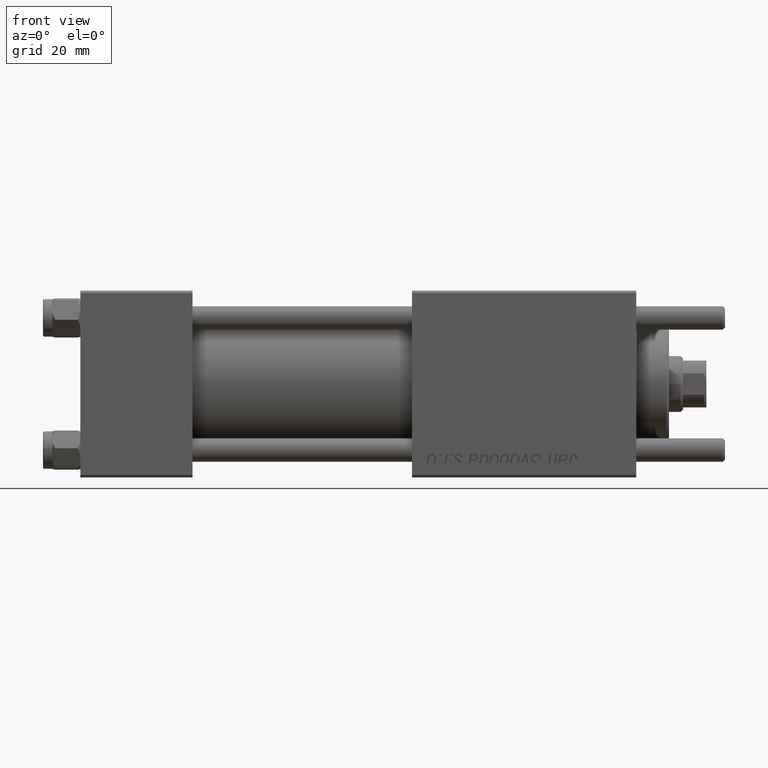
[diagram: clean part render]
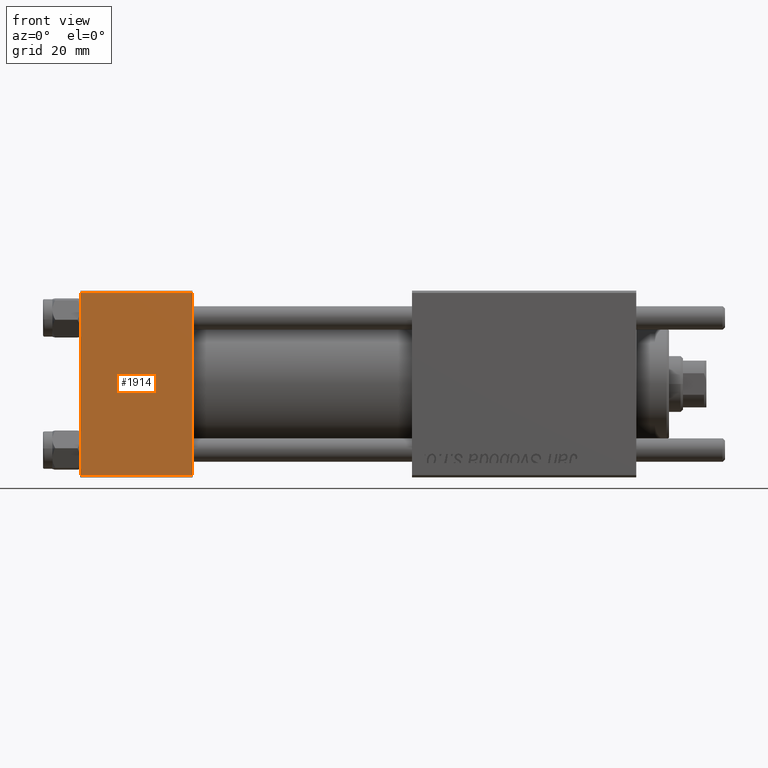
[diagram: same view with one face highlighted and labeled with its STEP entity id]
A machine part, front view. The second image highlights one B-rep face of the part: STEP entity #1914.
In plain terms, the highlighted planar face has unit normal (0, 1, 0).
Its self-contained STEP definition (entity closure, byte-faithful):
#886 = DIRECTION ( 'NONE',  ( -1.000000000000000000, 0.000000000000000000, 0.000000000000000000 ) ) ;
#1542 = DIRECTION ( 'NONE',  ( 0.000000000000000000, -8.673617379884036705E-17, 1.000000000000000000 ) ) ;
#1914 = ADVANCED_FACE ( 'NONE', ( #37371 ), #6707, .F. ) ;
#2937 = VECTOR ( 'NONE', #42193, 1000.000000000000000 ) ;
#4826 = VECTOR ( 'NONE', #52438, 1000.000000000000000 ) ;
#5086 = CARTESIAN_POINT ( 'NONE',  ( 0.000000000000000000, -20.00000000000000355, 19.99999999999998934 ) ) ;
#6707 = PLANE ( 'NONE',  #45117 ) ;
#7451 = VERTEX_POINT ( 'NONE', #37975 ) ;
#11924 = CARTESIAN_POINT ( 'NONE',  ( 24.00000000000000000, -20.00000000000000000, -19.49999999999999645 ) ) ;
#12230 = CARTESIAN_POINT ( 'NONE',  ( 0.000000000000000000, -20.00000000000000000, -19.49999999999999645 ) ) ;
#14319 = ORIENTED_EDGE ( 'NONE', *, *, #52368, .F. ) ;
#21234 = LINE ( 'NONE', #25534, #2937 ) ;
#21290 = CARTESIAN_POINT ( 'NONE',  ( 24.00000000000000000, -20.00000000000000355, 19.49999999999998224 ) ) ;
#25534 = CARTESIAN_POINT ( 'NONE',  ( 24.00000000000000000, -20.00000000000000355, 19.99999999999998934 ) ) ;
#26290 = ORIENTED_EDGE ( 'NONE', *, *, #38585, .T. ) ;
#27536 = EDGE_LOOP ( 'NONE', ( #30817, #55981, #14319, #26290 ) ) ;
#28119 = LINE ( 'NONE', #36442, #39916 ) ;
#29413 = DIRECTION ( 'NONE',  ( 1.000000000000000000, 0.000000000000000000, 0.000000000000000000 ) ) ;
#30817 = ORIENTED_EDGE ( 'NONE', *, *, #53619, .T. ) ;
#31499 = VERTEX_POINT ( 'NONE', #34439 ) ;
#34104 = VERTEX_POINT ( 'NONE', #21290 ) ;
#34439 = CARTESIAN_POINT ( 'NONE',  ( 24.00000000000000000, -20.00000000000000000, -19.49999999999999645 ) ) ;
#36442 = CARTESIAN_POINT ( 'NONE',  ( 24.00000000000000000, -20.00000000000000355, 19.49999999999998224 ) ) ;
#37371 = FACE_OUTER_BOUND ( 'NONE', #27536, .T. ) ;
#37975 = CARTESIAN_POINT ( 'NONE',  ( 0.000000000000000000, -20.00000000000000355, 19.49999999999998224 ) ) ;
#38585 = EDGE_CURVE ( 'NONE', #34104, #7451, #28119, .T. ) ;
#39916 = VECTOR ( 'NONE', #886, 1000.000000000000000 ) ;
#41387 = VECTOR ( 'NONE', #29413, 1000.000000000000000 ) ;
#42193 = DIRECTION ( 'NONE',  ( 0.000000000000000000, 8.673617379884036705E-17, -1.000000000000000000 ) ) ;
#44381 = LINE ( 'NONE', #5086, #4826 ) ;
#45117 = AXIS2_PLACEMENT_3D ( 'NONE', #54600, #54323, #1542 ) ;
#51189 = EDGE_CURVE ( 'NONE', #53724, #31499, #51218, .T. ) ;
#51218 = LINE ( 'NONE', #11924, #41387 ) ;
#52368 = EDGE_CURVE ( 'NONE', #34104, #31499, #21234, .T. ) ;
#52438 = DIRECTION ( 'NONE',  ( 0.000000000000000000, 8.673617379884036705E-17, -1.000000000000000000 ) ) ;
#53619 = EDGE_CURVE ( 'NONE', #7451, #53724, #44381, .T. ) ;
#53724 = VERTEX_POINT ( 'NONE', #12230 ) ;
#54323 = DIRECTION ( 'NONE',  ( -0.000000000000000000, 1.000000000000000000, 8.673617379884036705E-17 ) ) ;
#54600 = CARTESIAN_POINT ( 'NONE',  ( 24.00000000000000000, -20.00000000000000355, 19.99999999999998934 ) ) ;
#55981 = ORIENTED_EDGE ( 'NONE', *, *, #51189, .T. ) ;